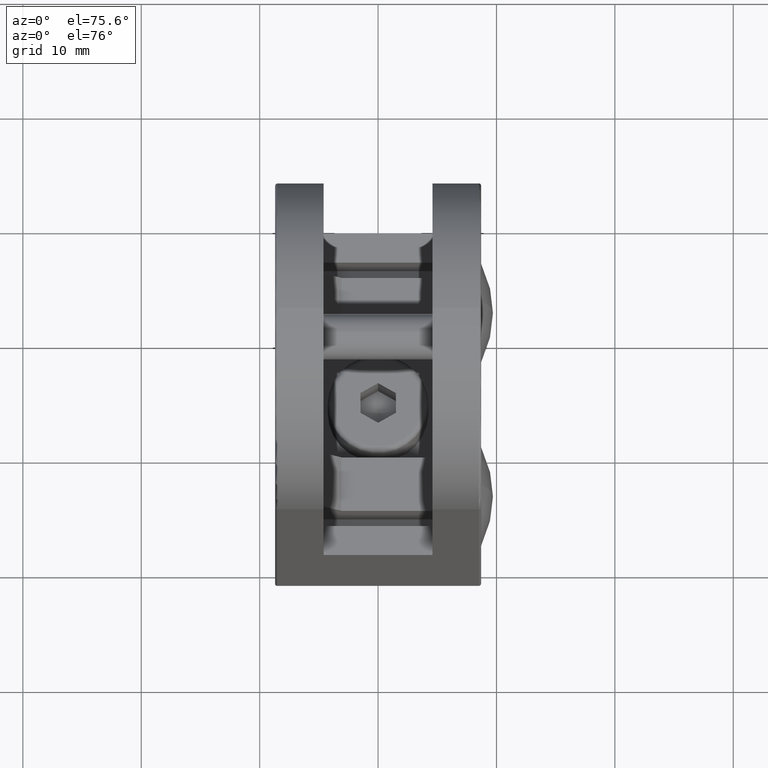
[diagram: clean part render]
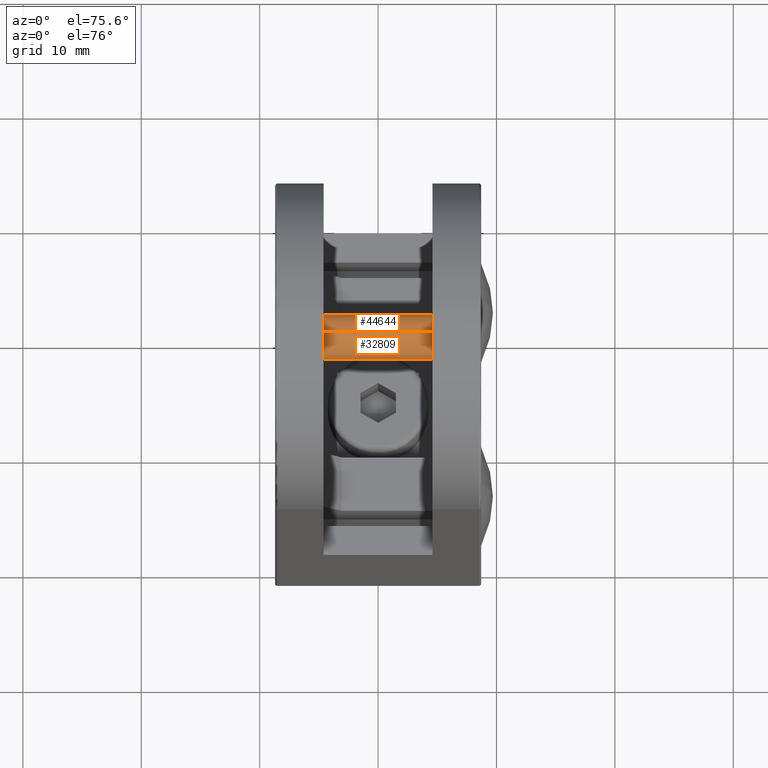
[diagram: same view with one multi-face feature highlighted, each face labeled with its STEP entity id]
A machine part, auxiliary view. The highlighted faces form ONE feature: a constant-radius fillet chain: 2 tangent blend faces with common blend radius 1.925 mm. The faces share edges in the B-rep.
Their STEP definitions:
[1] entity #44644 (Cylinder):
#2315 = DIRECTION ( 'NONE',  ( -0.0000000000000000000, -0.0000000000000000000, -1.000000000000000000 ) ) ;
#2534 = AXIS2_PLACEMENT_3D ( 'NONE', #4737, #41052, #16509 ) ;
#3442 = ORIENTED_EDGE ( 'NONE', *, *, #46570, .F. ) ;
#4737 = CARTESIAN_POINT ( 'NONE',  ( 0.0000000000000000000, 0.0000000000000000000, 6.500000000000000000 ) ) ;
#6011 = LINE ( 'NONE', #10431, #16688 ) ;
#6366 = EDGE_LOOP ( 'NONE', ( #33396, #39926, #12776, #3442 ) ) ;
#8354 = AXIS2_PLACEMENT_3D ( 'NONE', #29483, #12933, #24728 ) ;
#9865 = FACE_OUTER_BOUND ( 'NONE', #6366, .T. ) ;
#10431 = CARTESIAN_POINT ( 'NONE',  ( -1.925000000000000000, 0.0000000000000000000, 6.500000000000000000 ) ) ;
#12776 = ORIENTED_EDGE ( 'NONE', *, *, #48142, .T. ) ;
#12933 = DIRECTION ( 'NONE',  ( 0.0000000000000000000, 0.0000000000000000000, 1.000000000000000000 ) ) ;
#13343 = CARTESIAN_POINT ( 'NONE',  ( 1.925000000000000000, 2.357445088358654300E-016, 6.500000000000000000 ) ) ;
#13650 = VERTEX_POINT ( 'NONE', #35272 ) ;
#14170 = DIRECTION ( 'NONE',  ( 1.000000000000000000, 0.0000000000000000000, 0.0000000000000000000 ) ) ;
#16509 = DIRECTION ( 'NONE',  ( -1.000000000000000000, 0.0000000000000000000, 0.0000000000000000000 ) ) ;
#16688 = VECTOR ( 'NONE', #2315, 1000.000000000000000 ) ;
#17094 = CARTESIAN_POINT ( 'NONE',  ( -1.925000000000000000, 0.0000000000000000000, -6.500000000000000000 ) ) ;
#21045 = CIRCLE ( 'NONE', #8354, 1.925000000000000000 ) ;
#24728 = DIRECTION ( 'NONE',  ( 1.000000000000000000, 0.0000000000000000000, 0.0000000000000000000 ) ) ;
#24770 = VERTEX_POINT ( 'NONE', #17094 ) ;
#25322 = DIRECTION ( 'NONE',  ( -0.0000000000000000000, -0.0000000000000000000, -1.000000000000000000 ) ) ;
#25657 = VERTEX_POINT ( 'NONE', #52302 ) ;
#26812 = CARTESIAN_POINT ( 'NONE',  ( 1.925000000000000000, 2.357445088358654300E-016, 6.500000000000000000 ) ) ;
#27537 = VERTEX_POINT ( 'NONE', #26812 ) ;
#27909 = LINE ( 'NONE', #13343, #47457 ) ;
#28946 = EDGE_CURVE ( 'NONE', #27537, #13650, #21045, .T. ) ;
#29483 = CARTESIAN_POINT ( 'NONE',  ( 0.0000000000000000000, 0.0000000000000000000, 6.500000000000000000 ) ) ;
#33396 = ORIENTED_EDGE ( 'NONE', *, *, #28946, .F. ) ;
#34455 = CARTESIAN_POINT ( 'NONE',  ( 0.0000000000000000000, 0.0000000000000000000, -6.500000000000000000 ) ) ;
#35272 = CARTESIAN_POINT ( 'NONE',  ( -1.925000000000000000, 0.0000000000000000000, 6.500000000000000000 ) ) ;
#39392 = DIRECTION ( 'NONE',  ( 0.0000000000000000000, 0.0000000000000000000, 1.000000000000000000 ) ) ;
#39926 = ORIENTED_EDGE ( 'NONE', *, *, #50715, .T. ) ;
#41052 = DIRECTION ( 'NONE',  ( -0.0000000000000000000, -0.0000000000000000000, -1.000000000000000000 ) ) ;
#43803 = CIRCLE ( 'NONE', #51964, 1.925000000000000000 ) ;
#44644 = ADVANCED_FACE ( 'NONE', ( #9865 ), #51506, .T. ) ;
#46570 = EDGE_CURVE ( 'NONE', #13650, #24770, #6011, .T. ) ;
#47457 = VECTOR ( 'NONE', #25322, 1000.000000000000000 ) ;
#48142 = EDGE_CURVE ( 'NONE', #25657, #24770, #43803, .T. ) ;
#50715 = EDGE_CURVE ( 'NONE', #27537, #25657, #27909, .T. ) ;
#51506 = CYLINDRICAL_SURFACE ( 'NONE', #2534, 1.925000000000000000 ) ;
#51964 = AXIS2_PLACEMENT_3D ( 'NONE', #34455, #39392, #14170 ) ;
#52302 = CARTESIAN_POINT ( 'NONE',  ( 1.925000000000000000, 2.357445088358654300E-016, -6.500000000000000000 ) ) ;
[2] entity #32809 (Cylinder):
#2315 = DIRECTION ( 'NONE',  ( -0.0000000000000000000, -0.0000000000000000000, -1.000000000000000000 ) ) ;
#3369 = CYLINDRICAL_SURFACE ( 'NONE', #14209, 1.925000000000000000 ) ;
#5945 = FACE_OUTER_BOUND ( 'NONE', #35719, .T. ) ;
#6011 = LINE ( 'NONE', #10431, #16688 ) ;
#10431 = CARTESIAN_POINT ( 'NONE',  ( -1.925000000000000000, 0.0000000000000000000, 6.500000000000000000 ) ) ;
#13343 = CARTESIAN_POINT ( 'NONE',  ( 1.925000000000000000, 2.357445088358654300E-016, 6.500000000000000000 ) ) ;
#13650 = VERTEX_POINT ( 'NONE', #35272 ) ;
#14209 = AXIS2_PLACEMENT_3D ( 'NONE', #23037, #46718, #22515 ) ;
#14375 = ORIENTED_EDGE ( 'NONE', *, *, #43881, .F. ) ;
#15757 = CARTESIAN_POINT ( 'NONE',  ( 0.0000000000000000000, 0.0000000000000000000, -6.500000000000000000 ) ) ;
#16688 = VECTOR ( 'NONE', #2315, 1000.000000000000000 ) ;
#17094 = CARTESIAN_POINT ( 'NONE',  ( -1.925000000000000000, 0.0000000000000000000, -6.500000000000000000 ) ) ;
#17725 = AXIS2_PLACEMENT_3D ( 'NONE', #15757, #19829, #48080 ) ;
#19829 = DIRECTION ( 'NONE',  ( 0.0000000000000000000, 0.0000000000000000000, 1.000000000000000000 ) ) ;
#22515 = DIRECTION ( 'NONE',  ( -1.000000000000000000, 0.0000000000000000000, 0.0000000000000000000 ) ) ;
#23037 = CARTESIAN_POINT ( 'NONE',  ( 0.0000000000000000000, 0.0000000000000000000, 6.500000000000000000 ) ) ;
#24770 = VERTEX_POINT ( 'NONE', #17094 ) ;
#25129 = CARTESIAN_POINT ( 'NONE',  ( 0.0000000000000000000, 0.0000000000000000000, 6.500000000000000000 ) ) ;
#25322 = DIRECTION ( 'NONE',  ( -0.0000000000000000000, -0.0000000000000000000, -1.000000000000000000 ) ) ;
#25657 = VERTEX_POINT ( 'NONE', #52302 ) ;
#26812 = CARTESIAN_POINT ( 'NONE',  ( 1.925000000000000000, 2.357445088358654300E-016, 6.500000000000000000 ) ) ;
#27537 = VERTEX_POINT ( 'NONE', #26812 ) ;
#27878 = AXIS2_PLACEMENT_3D ( 'NONE', #25129, #29177, #49802 ) ;
#27909 = LINE ( 'NONE', #13343, #47457 ) ;
#28236 = CIRCLE ( 'NONE', #17725, 1.925000000000000000 ) ;
#29177 = DIRECTION ( 'NONE',  ( 0.0000000000000000000, 0.0000000000000000000, 1.000000000000000000 ) ) ;
#32809 = ADVANCED_FACE ( 'NONE', ( #5945 ), #3369, .T. ) ;
#34668 = ORIENTED_EDGE ( 'NONE', *, *, #50715, .F. ) ;
#35272 = CARTESIAN_POINT ( 'NONE',  ( -1.925000000000000000, 0.0000000000000000000, 6.500000000000000000 ) ) ;
#35719 = EDGE_LOOP ( 'NONE', ( #34668, #14375, #48101, #46282 ) ) ;
#35822 = CIRCLE ( 'NONE', #27878, 1.925000000000000000 ) ;
#43727 = EDGE_CURVE ( 'NONE', #24770, #25657, #28236, .T. ) ;
#43881 = EDGE_CURVE ( 'NONE', #13650, #27537, #35822, .T. ) ;
#46282 = ORIENTED_EDGE ( 'NONE', *, *, #43727, .T. ) ;
#46570 = EDGE_CURVE ( 'NONE', #13650, #24770, #6011, .T. ) ;
#46718 = DIRECTION ( 'NONE',  ( -0.0000000000000000000, -0.0000000000000000000, -1.000000000000000000 ) ) ;
#47457 = VECTOR ( 'NONE', #25322, 1000.000000000000000 ) ;
#48080 = DIRECTION ( 'NONE',  ( 1.000000000000000000, 0.0000000000000000000, 0.0000000000000000000 ) ) ;
#48101 = ORIENTED_EDGE ( 'NONE', *, *, #46570, .T. ) ;
#49802 = DIRECTION ( 'NONE',  ( 1.000000000000000000, 0.0000000000000000000, 0.0000000000000000000 ) ) ;
#50715 = EDGE_CURVE ( 'NONE', #27537, #25657, #27909, .T. ) ;
#52302 = CARTESIAN_POINT ( 'NONE',  ( 1.925000000000000000, 2.357445088358654300E-016, -6.500000000000000000 ) ) ;